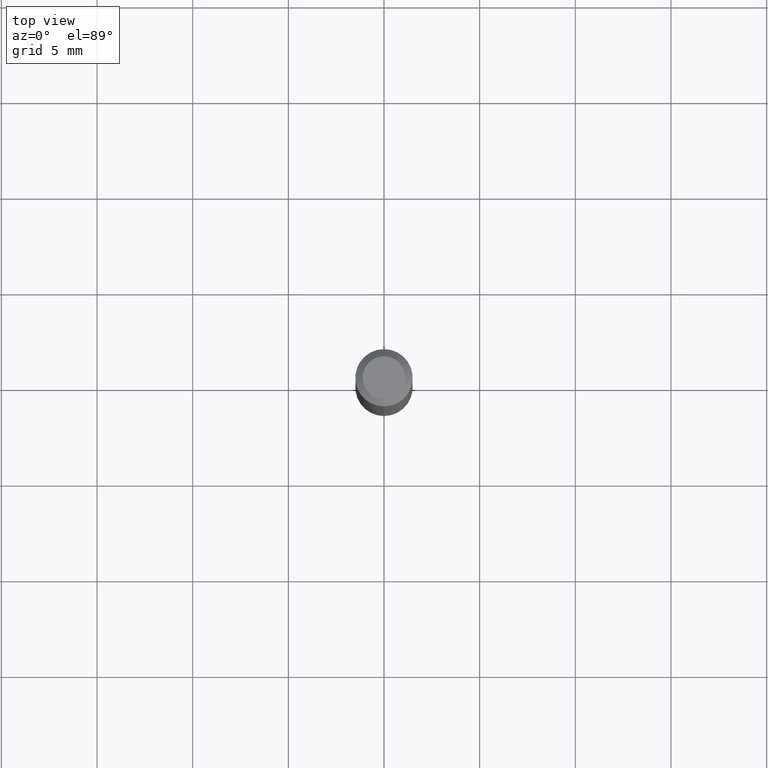
[diagram: clean part render]
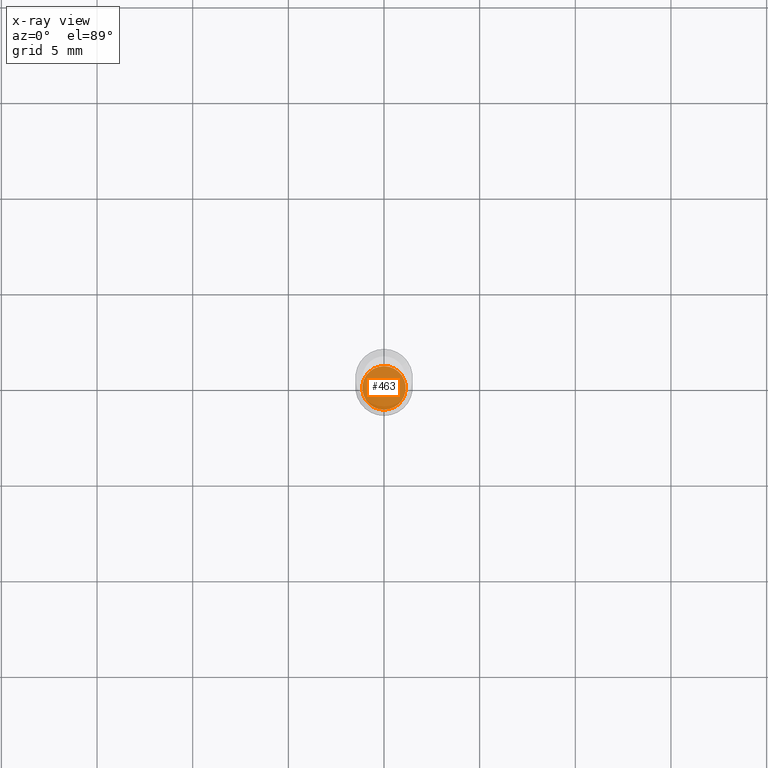
[diagram: x-ray — body ghosted, one internal face saturated and labeled with its STEP entity id]
A machine part, top view, then the same camera in x-ray: the body is ghosted and one INTERNAL B-rep face — a face not visible from any outside direction — is saturated and labeled: STEP entity #463.
In plain terms, the highlighted planar face has unit normal (-0, 0, 1).
Its self-contained STEP definition (entity closure, byte-faithful):
#2 = DIRECTION ( 'NONE',  ( -2.445418673968279448E-29, 3.491553131031033645E-15, 1.000000000000000000 ) ) ;
#25 = VERTEX_POINT ( 'NONE', #118 ) ;
#38 = CIRCLE ( 'NONE', #81, 0.04479999999999999954 ) ;
#43 = CARTESIAN_POINT ( 'NONE',  ( 2.994170624406760969E-29, -4.275057653634397483E-15, -1.224399999999999933 ) ) ;
#45 = ORIENTED_EDGE ( 'NONE', *, *, #458, .F. ) ;
#81 = AXIS2_PLACEMENT_3D ( 'NONE', #292, #2, #337 ) ;
#98 = CARTESIAN_POINT ( 'NONE',  ( 2.994170624406760969E-29, -4.275057653634397483E-15, -1.224399999999999933 ) ) ;
#118 = CARTESIAN_POINT ( 'NONE',  ( -3.128367279603147534E-16, -0.04480000000000427390, -1.224399999999999711 ) ) ;
#124 = EDGE_CURVE ( 'NONE', #279, #25, #248, .T. ) ;
#158 = CARTESIAN_POINT ( 'NONE',  ( 3.200995024599552074E-16, 0.04479999999999572519, -1.224400000000000155 ) ) ;
#176 = AXIS2_PLACEMENT_3D ( 'NONE', #98, #495, #220 ) ;
#196 = ORIENTED_EDGE ( 'NONE', *, *, #124, .F. ) ;
#220 = DIRECTION ( 'NONE',  ( -6.982962677686265922E-15, -1.000000000000000000, 3.491553131031033645E-15 ) ) ;
#248 = CIRCLE ( 'NONE', #268, 0.04479999999999999954 ) ;
#263 = DIRECTION ( 'NONE',  ( -2.445418673968279448E-29, 3.491553131031033645E-15, 1.000000000000000000 ) ) ;
#268 = AXIS2_PLACEMENT_3D ( 'NONE', #43, #263, #374 ) ;
#279 = VERTEX_POINT ( 'NONE', #158 ) ;
#284 = PLANE ( 'NONE',  #176 ) ;
#292 = CARTESIAN_POINT ( 'NONE',  ( 2.994170624406760969E-29, -4.275057653634397483E-15, -1.224399999999999933 ) ) ;
#303 = EDGE_LOOP ( 'NONE', ( #45, #196 ) ) ;
#326 = FACE_OUTER_BOUND ( 'NONE', #303, .T. ) ;
#337 = DIRECTION ( 'NONE',  ( -6.982962677686266711E-15, -1.000000000000000000, 3.048937492928865273E-15 ) ) ;
#374 = DIRECTION ( 'NONE',  ( -6.982962677686266711E-15, -1.000000000000000000, 3.048937492928865273E-15 ) ) ;
#458 = EDGE_CURVE ( 'NONE', #25, #279, #38, .T. ) ;
#463 = ADVANCED_FACE ( 'NONE', ( #326 ), #284, .F. ) ;
#495 = DIRECTION ( 'NONE',  ( -2.445418673968279168E-29, 3.491553131031033645E-15, 1.000000000000000000 ) ) ;